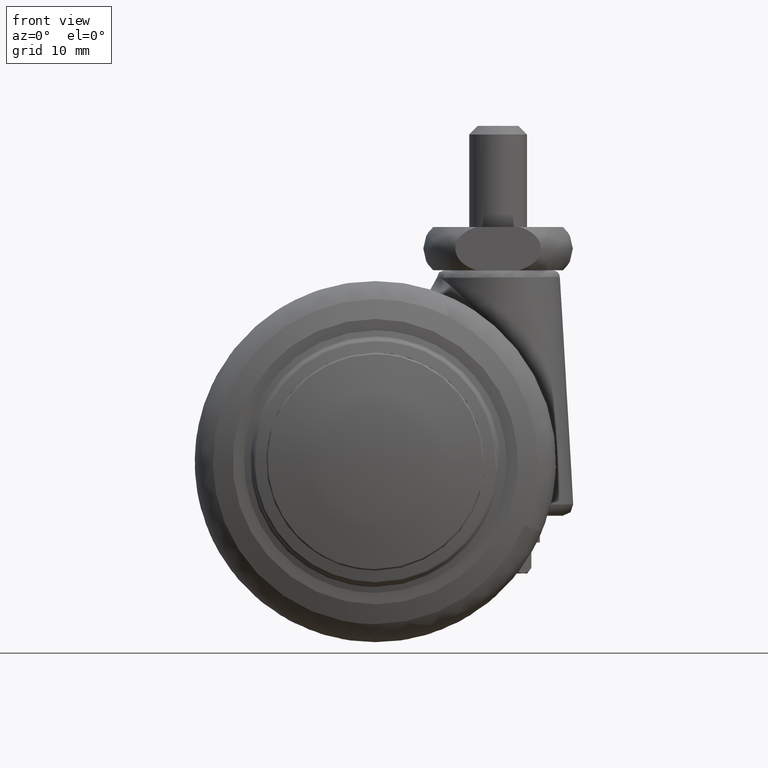
[diagram: clean part render]
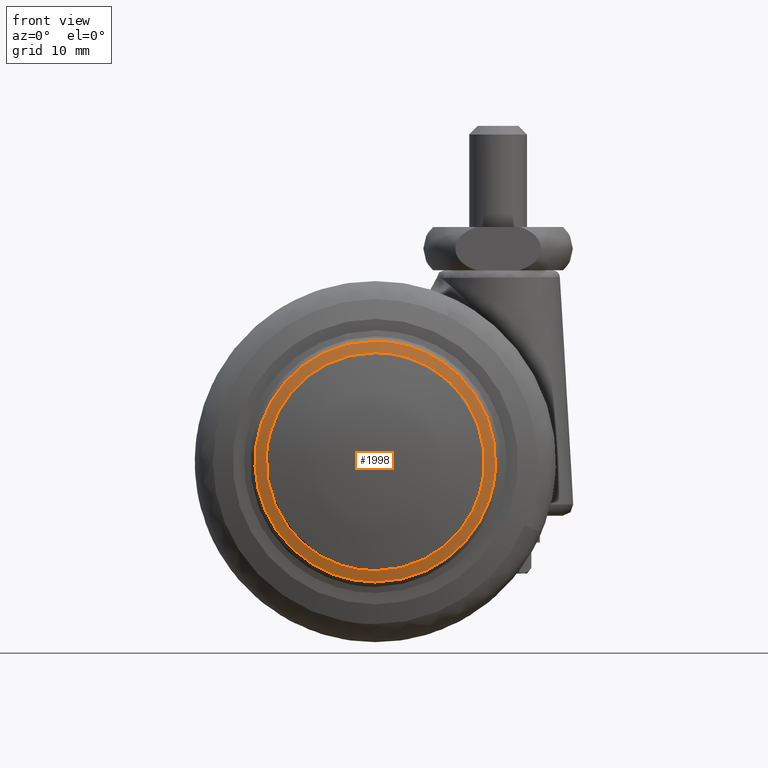
[diagram: same view with one face highlighted and labeled with its STEP entity id]
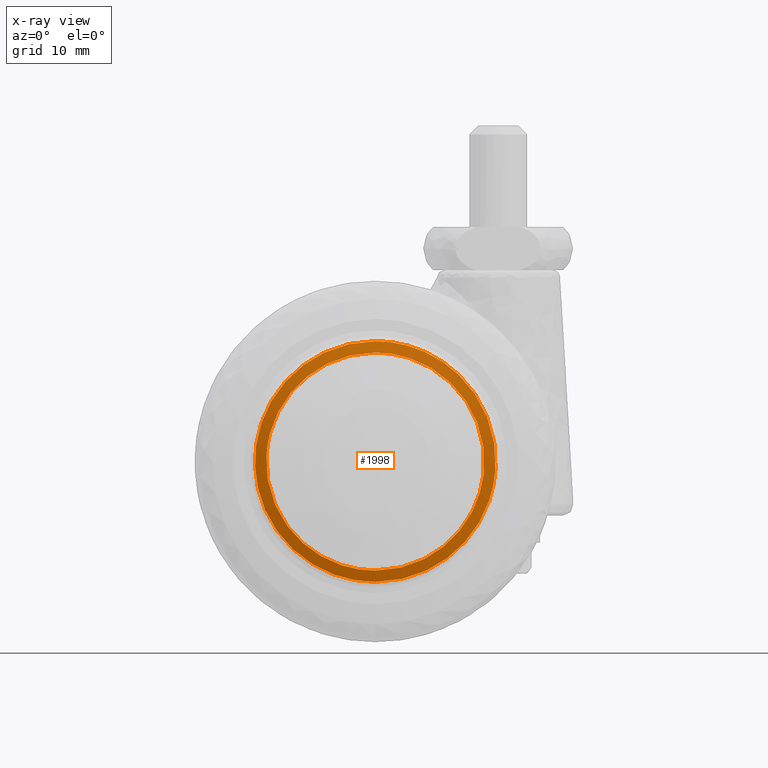
[diagram: x-ray of the same camera — body ghosted, the highlighted face saturated]
A machine part, front view. The second image highlights one B-rep face of the part: STEP entity #1998.
The next image is the same camera in x-ray: the body ghosted, the highlighted face saturated — about 0% of this face is hidden behind the body in this view.
In plain terms, the highlighted face is a freeform B-spline surface patch.
Its self-contained STEP definition (entity closure, byte-faithful):
#275=CARTESIAN_POINT('',(14.994446135850531,-22.512973365200398,-1.782297696430476));
#276=VERTEX_POINT('',#275);
#282=CARTESIAN_POINT('',(0.0,-22.512973365200398,15.100000000000000));
#283=VERTEX_POINT('',#282);
#284=CARTESIAN_POINT('',(14.994446135850534,-22.512973365200398,-1.782297696430475));
#285=CARTESIAN_POINT('',(15.099999999999998,-22.512973365200395,-0.894274481564592));
#286=CARTESIAN_POINT('',(15.100000000000000,-22.512973365200398,1.789254E-015));
#287=CARTESIAN_POINT('',(15.100000000000005,-22.512973365200398,15.100000000000005));
#288=CARTESIAN_POINT('',(0.0,-22.512973365200398,15.100000000000000));
#296=(BOUNDED_CURVE()B_SPLINE_CURVE(2,(#284,#285,#286,#287,#288),.UNSPECIFIED.,.F.,.U.)B_SPLINE_CURVE_WITH_KNOTS((3,2,3),(0.229562690448439,0.250000000000000,0.500000000000000),.UNSPECIFIED.)CURVE()GEOMETRIC_REPRESENTATION_ITEM()RATIONAL_B_SPLINE_CURVE((0.956027179385483,0.976056202486226,1.0,0.707106781186547,1.0))REPRESENTATION_ITEM(''));
#297=EDGE_CURVE('',#276,#283,#296,.T.);
#299=CARTESIAN_POINT('',(-15.071836945563520,-22.512973365200398,0.921808594965005));
#300=VERTEX_POINT('',#299);
#301=CARTESIAN_POINT('',(0.0,-22.512973365200398,15.100000000000000));
#302=CARTESIAN_POINT('',(-14.204684604072089,-22.512973365200398,15.100000000000003));
#303=CARTESIAN_POINT('',(-15.071836945563517,-22.512973365200402,0.921808594965005));
#311=(BOUNDED_CURVE()B_SPLINE_CURVE(2,(#301,#302,#303),.UNSPECIFIED.,.F.,.U.)B_SPLINE_CURVE_WITH_KNOTS((3,3),(0.500000000000000,0.739333241030990),.UNSPECIFIED.)CURVE()GEOMETRIC_REPRESENTATION_ITEM()RATIONAL_B_SPLINE_CURVE((1.0,0.719603666661510,0.976072639171872))REPRESENTATION_ITEM(''));
#312=EDGE_CURVE('',#283,#300,#311,.T.);
#386=CARTESIAN_POINT('',(0.0,-22.512973365200398,-15.100000000000000));
#387=VERTEX_POINT('',#386);
#388=CARTESIAN_POINT('',(-15.071836945563517,-22.512973365200402,0.921808594965005));
#389=CARTESIAN_POINT('',(-15.100000000000000,-22.512973365200391,0.461334515664197));
#390=CARTESIAN_POINT('',(-15.100000000000000,-22.512973365200398,1.789254E-015));
#391=CARTESIAN_POINT('',(-15.100000000000005,-22.512973365200398,-15.100000000000005));
#392=CARTESIAN_POINT('',(0.0,-22.512973365200398,-15.100000000000000));
#400=(BOUNDED_CURVE()B_SPLINE_CURVE(2,(#388,#389,#390,#391,#392),.UNSPECIFIED.,.F.,.U.)B_SPLINE_CURVE_WITH_KNOTS((3,2,3),(0.739333241030990,0.750000000000000,1.0),.UNSPECIFIED.)CURVE()GEOMETRIC_REPRESENTATION_ITEM()RATIONAL_B_SPLINE_CURVE((0.976072639171872,0.987503114525037,1.0,0.707106781186547,1.0))REPRESENTATION_ITEM(''));
#401=EDGE_CURVE('',#300,#387,#400,.T.);
#403=CARTESIAN_POINT('',(0.0,-22.512973365200398,-15.100000000000000));
#404=CARTESIAN_POINT('',(13.411452677995506,-22.512973365200402,-15.100000000000005));
#405=CARTESIAN_POINT('',(14.994446135850534,-22.512973365200398,-1.782297696430475));
#413=(BOUNDED_CURVE()B_SPLINE_CURVE(2,(#403,#404,#405),.UNSPECIFIED.,.F.,.U.)B_SPLINE_CURVE_WITH_KNOTS((3,3),(0.0,0.229562690448439),.UNSPECIFIED.)CURVE()GEOMETRIC_REPRESENTATION_ITEM()RATIONAL_B_SPLINE_CURVE((1.0,0.731050578700322,0.956027179385483))REPRESENTATION_ITEM(''));
#414=EDGE_CURVE('',#387,#276,#413,.T.);
#1180=CARTESIAN_POINT('',(16.633451949998150,-22.069978467728610,-1.046488094724718));
#1181=VERTEX_POINT('',#1180);
#1195=CARTESIAN_POINT('',(0.0,-22.069978467936402,-16.666339162555900));
#1196=VERTEX_POINT('',#1195);
#1197=CARTESIAN_POINT('',(0.0,-22.069978467936402,-16.666339162555900));
#1198=CARTESIAN_POINT('',(15.650734216773253,-22.069978467936398,-16.666339162555889));
#1199=CARTESIAN_POINT('',(16.633451949998147,-22.069978467728607,-1.046488094724718));
#1207=(BOUNDED_CURVE()B_SPLINE_CURVE(2,(#1197,#1198,#1199),.UNSPECIFIED.,.F.,.U.)B_SPLINE_CURVE_WITH_KNOTS((3,3),(0.0,0.239031910740138),.UNSPECIFIED.)CURVE()GEOMETRIC_REPRESENTATION_ITEM()RATIONAL_B_SPLINE_CURVE((1.0,0.719956697056764,0.975427680453536))REPRESENTATION_ITEM(''));
#1208=EDGE_CURVE('',#1196,#1181,#1207,.T.);
#1210=CARTESIAN_POINT('',(0.0,-22.069978467936402,16.666339162555900));
#1211=VERTEX_POINT('',#1210);
#1212=CARTESIAN_POINT('',(0.0,-22.069978467936402,16.666339162555900));
#1213=CARTESIAN_POINT('',(-16.666339162555897,-22.069978467936405,16.666339162555897));
#1214=CARTESIAN_POINT('',(-16.666339162555900,-22.069978467936402,1.789254E-015));
#1215=CARTESIAN_POINT('',(-16.666339162555897,-22.069978467936405,-16.666339162555897));
#1216=CARTESIAN_POINT('',(0.0,-22.069978467936402,-16.666339162555900));
#1224=(BOUNDED_CURVE()B_SPLINE_CURVE(2,(#1212,#1213,#1214,#1215,#1216),.UNSPECIFIED.,.F.,.U.)B_SPLINE_CURVE_WITH_KNOTS((3,2,3),(0.500000000000000,0.750000000000000,1.0),.UNSPECIFIED.)CURVE()GEOMETRIC_REPRESENTATION_ITEM()RATIONAL_B_SPLINE_CURVE((1.0,0.707106781186547,1.0,0.707106781186547,1.0))REPRESENTATION_ITEM(''));
#1225=EDGE_CURVE('',#1211,#1196,#1224,.T.);
#1227=CARTESIAN_POINT('',(6.855630672894569,-22.069978465997242,15.191023315818910));
#1228=VERTEX_POINT('',#1227);
#1229=CARTESIAN_POINT('',(6.855630672894569,-22.069978465997238,15.191023315818910));
#1230=CARTESIAN_POINT('',(3.586557613566396,-22.069978467936394,16.666339162555907));
#1231=CARTESIAN_POINT('',(0.0,-22.069978467936402,16.666339162555900));
#1239=(BOUNDED_CURVE()B_SPLINE_CURVE(2,(#1229,#1230,#1231),.UNSPECIFIED.,.F.,.U.)B_SPLINE_CURVE_WITH_KNOTS((3,3),(0.430143025646457,0.500000000000000),.UNSPECIFIED.)CURVE()GEOMETRIC_REPRESENTATION_ITEM()RATIONAL_B_SPLINE_CURVE((0.882053103074830,0.918157463700087,1.0))REPRESENTATION_ITEM(''));
#1240=EDGE_CURVE('',#1228,#1211,#1239,.T.);
#1291=CARTESIAN_POINT('',(16.633451949998150,-22.069978467728610,-1.046488094724718));
#1292=CARTESIAN_POINT('',(16.666339162555904,-22.069978467936398,-0.523760808502205));
#1293=CARTESIAN_POINT('',(16.666339162555900,-22.069978467936402,1.789254E-015));
#1294=CARTESIAN_POINT('',(16.666339162555900,-22.069978467936391,10.763501037767956));
#1295=CARTESIAN_POINT('',(6.855630672894569,-22.069978465997234,15.191023315818903));
#1303=(BOUNDED_CURVE()B_SPLINE_CURVE(2,(#1291,#1292,#1293,#1294,#1295),.UNSPECIFIED.,.F.,.U.)B_SPLINE_CURVE_WITH_KNOTS((3,2,3),(0.239031910740138,0.250000000000000,0.430143025646456),.UNSPECIFIED.)CURVE()GEOMETRIC_REPRESENTATION_ITEM()RATIONAL_B_SPLINE_CURVE((0.975427680453536,0.987150084129783,1.0,0.788949317486460,0.882053103074830))REPRESENTATION_ITEM(''));
#1304=EDGE_CURVE('',#1181,#1228,#1303,.T.);
#1962=CARTESIAN_POINT('',(-17.805041908350375,-18.789210452853400,-17.805170034991008));
#1963=CARTESIAN_POINT('',(-9.125736689969410,-21.572989771254967,-18.251604780307645));
#1964=CARTESIAN_POINT('',(9.124419893353217,-21.572989767385426,-18.251604780307655));
#1965=CARTESIAN_POINT('',(17.802598369449683,-18.789994127756170,-17.805295714161627));
#1966=CARTESIAN_POINT('',(-18.251479984325378,-21.573031032207385,-9.125805641647862));
#1967=CARTESIAN_POINT('',(-9.360437294752948,-24.499999848291239,-9.360504689335180));
#1968=CARTESIAN_POINT('',(9.359086632689618,-24.499999844322179,-9.360504689335182));
#1969=CARTESIAN_POINT('',(18.248978407299081,-21.573854499380424,-9.125871671998606));
#1970=CARTESIAN_POINT('',(-18.251479984325378,-21.573031331886977,9.125804982395330));
#1971=CARTESIAN_POINT('',(-9.360437294752948,-24.500000155678041,9.360503912396620));
#1972=CARTESIAN_POINT('',(9.359086632689618,-24.500000151708981,9.360503912396618));
#1973=CARTESIAN_POINT('',(18.248978407299081,-21.573854799062183,9.125871012712963));
#1974=CARTESIAN_POINT('',(-17.805041988396116,-18.789211536687265,17.805168749592802));
#1975=CARTESIAN_POINT('',(-9.125736732024461,-21.572990895092921,18.251603366532059));
#1976=CARTESIAN_POINT('',(9.124419935402198,-21.572990891223391,18.251603366532059));
#1977=CARTESIAN_POINT('',(17.802598449485007,-18.789995211601205,17.805294428727265));
#1985=(BOUNDED_SURFACE()B_SPLINE_SURFACE(2,2,((#1962,#1966,#1970,#1974),(#1963,#1967,#1971,#1975),(#1964,#1968,#1972,#1976),(#1965,#1969,#1973,#1977)),.UNSPECIFIED.,.F.,.F.,.U.)B_SPLINE_SURFACE_WITH_KNOTS((3,1,3),(3,1,3),(12.230433914041519,30.297970171461749,48.362899330282211),(12.230303772401809,30.297970171461760,48.365634910154341),.UNSPECIFIED.)GEOMETRIC_REPRESENTATION_ITEM()RATIONAL_B_SPLINE_SURFACE(((1.051436705337843,1.025718167418620,1.025718167418620,1.051436700610922),(1.025718537919223,1.0,1.0,1.025718533192301),(1.025718537919223,1.0,1.0,1.025718533192301),(1.051429283743691,1.025710745824469,1.025710745824469,1.051429279016770)))REPRESENTATION_ITEM('')SURFACE());
#1986=ORIENTED_EDGE('',*,*,#1208,.T.);
#1987=ORIENTED_EDGE('',*,*,#1304,.T.);
#1988=ORIENTED_EDGE('',*,*,#1240,.T.);
#1989=ORIENTED_EDGE('',*,*,#1225,.T.);
#1990=EDGE_LOOP('',(#1986,#1987,#1988,#1989));
#1991=FACE_OUTER_BOUND('',#1990,.T.);
#1992=ORIENTED_EDGE('',*,*,#312,.F.);
#1993=ORIENTED_EDGE('',*,*,#297,.F.);
#1994=ORIENTED_EDGE('',*,*,#414,.F.);
#1995=ORIENTED_EDGE('',*,*,#401,.F.);
#1996=EDGE_LOOP('',(#1992,#1993,#1994,#1995));
#1997=FACE_BOUND('',#1996,.T.);
#1998=ADVANCED_FACE('',(#1991,#1997),#1985,.T.);